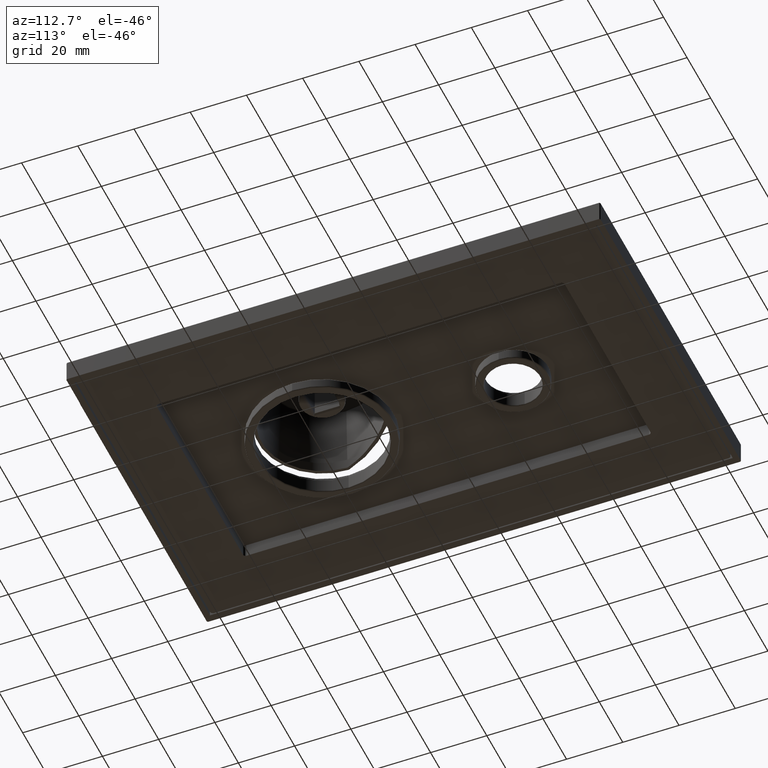
[diagram: clean part render]
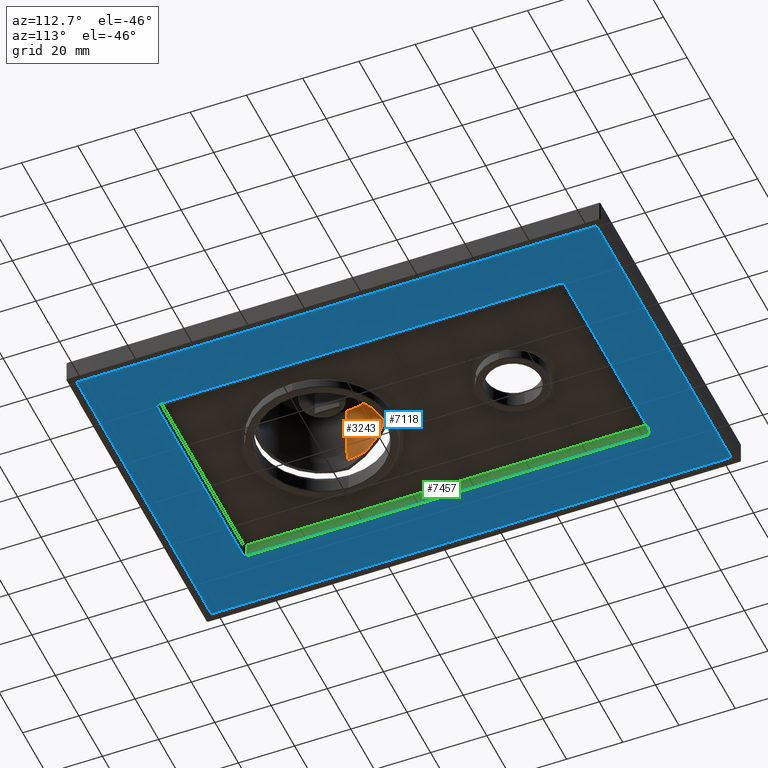
[diagram: same view with three faces highlighted in distinct colors, each labeled with its STEP entity id]
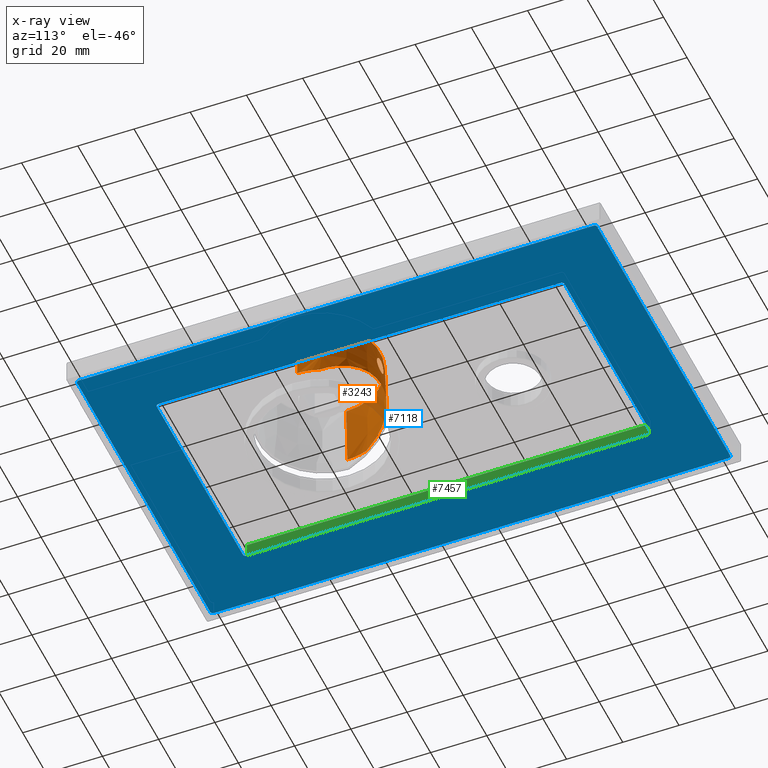
[diagram: x-ray of the same camera — body ghosted, the three highlighted faces saturated]
A machine part, auxiliary view with three faces highlighted in distinct colors.
The next image is the same camera in x-ray (body ghosted, the three faces saturated) — at least one of them is partly hidden behind the body in this view.
Their STEP definitions:

[orange] entity #3243 — the highlighted conical surface has half-angle 2 deg.
#720=CARTESIAN_POINT('',(0.E0,0.E0,3.429015690828E0));
#721=DIRECTION('',(0.E0,0.E0,1.E0));
#722=DIRECTION('',(1.E0,0.E0,0.E0));
#723=AXIS2_PLACEMENT_3D('',#720,#721,#722);
#730=CARTESIAN_POINT('',(0.E0,0.E0,3.429015690828E0));
#731=DIRECTION('',(0.E0,0.E0,1.E0));
#732=DIRECTION('',(-9.388125625496E-1,3.444284721085E-1,0.E0));
#733=AXIS2_PLACEMENT_3D('',#730,#731,#732);
#741=CARTESIAN_POINT('',(0.E0,0.E0,2.551744974835E1));
#742=DIRECTION('',(0.E0,0.E0,-1.E0));
#743=DIRECTION('',(-1.E0,0.E0,0.E0));
#744=AXIS2_PLACEMENT_3D('',#741,#742,#743);
#746=DIRECTION('',(3.489949670250E-2,-1.092299118511E-13,-9.993908270191E-1));
#747=VECTOR('',#746,2.210189793657E1);
#748=CARTESIAN_POINT('',(2.057865488584E1,2.411573752438E-12,2.551744974835E1));
#749=LINE('',#748,#747);
#750=CARTESIAN_POINT('',(-2.004364821043E1,7.353547879517E0,3.429015690828E0));
#751=CARTESIAN_POINT('',(-1.993925420934E1,7.625250289494E0,3.555712605340E0));
#752=CARTESIAN_POINT('',(-1.973046620715E1,8.136075440168E0,3.793914285077E0));
#753=CARTESIAN_POINT('',(-1.931289020276E1,9.059363108245E0,4.224450395382E0));
#754=CARTESIAN_POINT('',(-1.879092019728E1,1.006906660700E1,4.695282869318E0));
#755=CARTESIAN_POINT('',(-1.816455619071E1,1.112253809155E1,5.186524690209E0));
#756=CARTESIAN_POINT('',(-1.753819218413E1,1.205654103118E1,5.622057413698E0));
#757=CARTESIAN_POINT('',(-1.691182817755E1,1.289613158030E1,6.013564916469E0));
#758=CARTESIAN_POINT('',(-1.607667616879E1,1.391181855437E1,6.487187530767E0));
#759=CARTESIAN_POINT('',(-1.503273615783E1,1.501802443531E1,7.003019804546E0));
#760=CARTESIAN_POINT('',(-1.378000814467E1,1.614698559615E1,7.529463039603E0));
#761=CARTESIAN_POINT('',(-1.252728013152E1,1.711482956260E1,7.980776093059E0));
#762=CARTESIAN_POINT('',(-1.127455211837E1,1.794691820496E1,8.368785399253E0));
#763=CARTESIAN_POINT('',(-9.604248100833E0,1.889863657175E1,8.812578962093E0));
#764=CARTESIAN_POINT('',(-7.516368078913E0,1.982588523818E1,9.244962116267E0));
#765=CARTESIAN_POINT('',(-5.010912052609E0,2.058556609231E1,9.599207116302E0));
#766=CARTESIAN_POINT('',(-2.505456026304E0,2.102860070746E1,9.805797550172E0));
#767=CARTESIAN_POINT('',(7.072120666862E-14,2.117430384811E1,9.873740040476E0));
#768=CARTESIAN_POINT('',(2.505456026304E0,2.102860070746E1,9.805797550172E0));
#769=CARTESIAN_POINT('',(5.010912052609E0,2.058556609231E1,9.599207116302E0));
#770=CARTESIAN_POINT('',(7.516368078913E0,1.982588523818E1,9.244962116267E0));
#771=CARTESIAN_POINT('',(9.604248100833E0,1.889863657175E1,8.812578962093E0));
#772=CARTESIAN_POINT('',(1.127455211837E1,1.794691820496E1,8.368785399253E0));
#773=CARTESIAN_POINT('',(1.252728013152E1,1.711482956260E1,7.980776093059E0));
#774=CARTESIAN_POINT('',(1.378000814467E1,1.614698559615E1,7.529463039603E0));
#775=CARTESIAN_POINT('',(1.503273615783E1,1.501802443531E1,7.003019804546E0));
#776=CARTESIAN_POINT('',(1.607667616879E1,1.391181855437E1,6.487187530767E0));
#777=CARTESIAN_POINT('',(1.691182817755E1,1.289613158030E1,6.013564916469E0));
#778=CARTESIAN_POINT('',(1.753819218413E1,1.205654103118E1,5.622057413698E0));
#779=CARTESIAN_POINT('',(1.816455619071E1,1.112253809155E1,5.186524690209E0));
#780=CARTESIAN_POINT('',(1.879092019728E1,1.006906660700E1,4.695282869318E0));
#781=CARTESIAN_POINT('',(1.931289020276E1,9.059363108245E0,4.224450395382E0));
#782=CARTESIAN_POINT('',(1.973046620715E1,8.136075440168E0,3.793914285077E0));
#783=CARTESIAN_POINT('',(1.993925420934E1,7.625250289494E0,3.555712605340E0));
#784=CARTESIAN_POINT('',(2.004364821043E1,7.353547879517E0,3.429015690828E0));
#786=DIRECTION('',(-3.489949670250E-2,1.092611811373E-13,-9.993908270191E-1));
#787=VECTOR('',#786,2.210189793657E1);
#788=CARTESIAN_POINT('',(-2.057865488584E1,-2.413136383316E-12,
2.551744974835E1));
#789=LINE('',#788,#787);
#790=CARTESIAN_POINT('',(-9.999999999996E-1,2.087176502141E1,1.643826230851E1));
#791=CARTESIAN_POINT('',(-9.420694584698E-1,2.087533116332E1,1.641564854063E1));
#792=CARTESIAN_POINT('',(-8.246799383297E-1,2.088191470667E1,1.637435273200E1));
#793=CARTESIAN_POINT('',(-6.446577272368E-1,2.089000023904E1,1.632445465117E1));
#794=CARTESIAN_POINT('',(-4.619731383502E-1,2.089615308861E1,1.628695650156E1));
#795=CARTESIAN_POINT('',(-2.780509975733E-1,2.090028509773E1,1.626199560964E1));
#796=CARTESIAN_POINT('',(-9.273373879364E-2,2.090236837789E1,1.624947675227E1));
#797=CARTESIAN_POINT('',(9.273026985252E-2,2.090236843286E1,1.624947642221E1));
#798=CARTESIAN_POINT('',(2.780587377374E-1,2.090028498674E1,1.626199627585E1));
#799=CARTESIAN_POINT('',(4.619749443987E-1,2.089615298423E1,1.628695714183E1));
#800=CARTESIAN_POINT('',(6.446462804844E-1,2.089000066888E1,1.632445202301E1));
#801=CARTESIAN_POINT('',(8.246723208318E-1,2.088191511731E1,1.637435017102E1));
#802=CARTESIAN_POINT('',(9.420661620583E-1,2.087533136625E1,1.641564725384E1));
#803=CARTESIAN_POINT('',(9.999999999997E-1,2.087176502141E1,1.643826230851E1));
#1488=CARTESIAN_POINT('',(-9.999999999996E-1,2.087176502141E1,
1.643826230851E1));
#1489=CARTESIAN_POINT('',(-1.060453836112E0,2.086804354818E1,1.646186106974E1));
#1490=CARTESIAN_POINT('',(-1.179780475099E0,2.085999747282E1,1.651337531843E1));
#1491=CARTESIAN_POINT('',(-1.353122569632E0,2.084630826663E1,1.660327647862E1));
#1492=CARTESIAN_POINT('',(-1.519899932266E0,2.083121822617E1,1.670540522483E1));
#1493=CARTESIAN_POINT('',(-1.679212762119E0,2.081497212488E1,1.681928060199E1));
#1494=CARTESIAN_POINT('',(-1.830185056741E0,2.079783625533E1,1.694433965857E1));
#1495=CARTESIAN_POINT('',(-1.971977135433E0,2.078009320349E1,1.707993797041E1));
#1496=CARTESIAN_POINT('',(-2.103799412524E0,2.076203555824E1,1.722535479645E1));
#1497=CARTESIAN_POINT('',(-2.224924807521E0,2.074395901389E1,1.737980156033E1));
#1498=CARTESIAN_POINT('',(-2.334697907966E0,2.072615540372E1,1.754243156092E1));
#1499=CARTESIAN_POINT('',(-2.432542426525E0,2.070890575355E1,1.771235238918E1));
#1500=CARTESIAN_POINT('',(-2.517965512092E0,2.069247381930E1,1.788863959585E1));
#1501=CARTESIAN_POINT('',(-2.590558273491E0,2.067710052319E1,1.807034957884E1));
#1502=CARTESIAN_POINT('',(-2.649992849810E0,2.066299955222E1,1.825652927371E1));
#1503=CARTESIAN_POINT('',(-2.696018408477E0,2.065035383219E1,1.844622583596E1));
#1504=CARTESIAN_POINT('',(-2.728455290655E0,2.063931311070E1,1.863849360420E1));
#1505=CARTESIAN_POINT('',(-2.747188264685E0,2.062999262491E1,1.883239568259E1));
#1506=CARTESIAN_POINT('',(-2.752161317586E0,2.062247233349E1,1.902700437900E1));
#1507=CARTESIAN_POINT('',(-2.743372951817E0,2.061679660521E1,1.922140554084E1));
#1508=CARTESIAN_POINT('',(-2.720873677339E0,2.061297484789E1,1.941468508072E1));
#1509=CARTESIAN_POINT('',(-2.684766178849E0,2.061098164359E1,1.960593568543E1));
#1510=CARTESIAN_POINT('',(-2.635203724401E0,2.061075789219E1,1.979425716653E1));
#1511=CARTESIAN_POINT('',(-2.572409078965E0,2.061221166688E1,1.997870626381E1));
#1512=CARTESIAN_POINT('',(-2.496693842083E0,2.061521777620E1,2.015831010495E1));
#1513=CARTESIAN_POINT('',(-2.408420197376E0,2.061962192599E1,2.033217393751E1));
#1514=CARTESIAN_POINT('',(-2.307995913237E0,2.062524566606E1,2.049944867819E1));
#1515=CARTESIAN_POINT('',(-2.195896644704E0,2.063188897912E1,2.065929097505E1));
#1516=CARTESIAN_POINT('',(-2.072660284401E0,2.063933463183E1,2.081088520361E1));
#1517=CARTESIAN_POINT('',(-1.938889767823E0,2.064735262496E1,2.095344520573E1));
#1518=CARTESIAN_POINT('',(-1.795250489542E0,2.065570529676E1,2.108622415131E1));
#1519=CARTESIAN_POINT('',(-1.642467522361E0,2.066415265718E1,2.120852124136E1));
#1520=CARTESIAN_POINT('',(-1.481322183291E0,2.067245791025E1,2.131968955884E1));
#1521=CARTESIAN_POINT('',(-1.312630477522E0,2.068039352166E1,2.141914822674E1));
#1522=CARTESIAN_POINT('',(-1.137340052726E0,2.068774205442E1,2.150633594864E1));
#1523=CARTESIAN_POINT('',(-9.564247610136E-1,2.069430719278E1,
2.158079369177E1));
#1524=CARTESIAN_POINT('',(-7.707948908464E-1,2.069991998517E1,
2.164217787353E1));
#1525=CARTESIAN_POINT('',(-5.813963689904E-1,2.070443742450E1,
2.169020291091E1));
#1526=CARTESIAN_POINT('',(-3.891697348363E-1,2.070774638233E1,
2.172465570737E1));
#1527=CARTESIAN_POINT('',(-1.950588853849E-1,2.070976485661E1,
2.174538635675E1));
#1528=CARTESIAN_POINT('',(-6.130263914522E-6,2.071044324548E1,
2.175230660365E1));
#1529=CARTESIAN_POINT('',(1.950466379801E-1,2.070976494192E1,2.174538722859E1));
#1530=CARTESIAN_POINT('',(3.891576243425E-1,2.070774654947E1,2.172465743224E1));
#1531=CARTESIAN_POINT('',(5.813842825945E-1,2.070443767414E1,2.169020553452E1));
#1532=CARTESIAN_POINT('',(7.707833972549E-1,2.069992029499E1,2.164218120404E1));
#1533=CARTESIAN_POINT('',(9.564125361552E-1,2.069430760237E1,2.158079825074E1));
#1534=CARTESIAN_POINT('',(1.137330481825E0,2.068774243068E1,2.150634031079E1));
#1535=CARTESIAN_POINT('',(1.312617881803E0,2.068039407192E1,2.141915485541E1));
#1536=CARTESIAN_POINT('',(1.481303934354E0,2.067245880774E1,2.131970111488E1));
#1537=CARTESIAN_POINT('',(1.642450832283E0,2.066415355322E1,2.120853370311E1));
#1538=CARTESIAN_POINT('',(1.795234836289E0,2.065570618690E1,2.108623760925E1));
#1539=CARTESIAN_POINT('',(1.938875047100E0,2.064735349728E1,2.095345982060E1));
#1540=CARTESIAN_POINT('',(2.072646713613E0,2.063933545186E1,2.081090073473E1));
#1541=CARTESIAN_POINT('',(2.195884190592E0,2.063188972790E1,2.065930746679E1));
#1542=CARTESIAN_POINT('',(2.307984762897E0,2.062524631329E1,2.049946582028E1));
#1543=CARTESIAN_POINT('',(2.408410097021E0,2.061962246461E1,2.033219224305E1));
#1544=CARTESIAN_POINT('',(2.496685568637E0,2.061521815381E1,2.015832789516E1));
#1545=CARTESIAN_POINT('',(2.572401173941E0,2.061221192690E1,1.997872693733E1));
#1546=CARTESIAN_POINT('',(2.635197832140E0,2.061075794882E1,1.979427702174E1));
#1547=CARTESIAN_POINT('',(2.684762324019E0,2.061098154387E1,1.960595280164E1));
#1548=CARTESIAN_POINT('',(2.720870755912E0,2.061297456312E1,1.941470412689E1));
#1549=CARTESIAN_POINT('',(2.743371477667E0,2.061679615591E1,1.922142387384E1));
#1550=CARTESIAN_POINT('',(2.752161141787E0,2.062247168552E1,1.902702343728E1));
#1551=CARTESIAN_POINT('',(2.747189347481E0,2.062999188170E1,1.883241267949E1));
#1552=CARTESIAN_POINT('',(2.728457417824E0,2.063931226819E1,1.863850952677E1));
#1553=CARTESIAN_POINT('',(2.696021447040E0,2.065035291969E1,1.844624046762E1));
#1554=CARTESIAN_POINT('',(2.649996547273E0,2.066299861717E1,1.825654234909E1));
#1555=CARTESIAN_POINT('',(2.590562559742E0,2.067709956718E1,1.807036146661E1));
#1556=CARTESIAN_POINT('',(2.517970287397E0,2.069247285936E1,1.788865035303E1));
#1557=CARTESIAN_POINT('',(2.432547395193E0,2.070890484180E1,1.771236171611E1));
#1558=CARTESIAN_POINT('',(2.334702990057E0,2.072615454636E1,1.754243966271E1));
#1559=CARTESIAN_POINT('',(2.224929970656E0,2.074395821231E1,1.737980861591E1));
#1560=CARTESIAN_POINT('',(2.103804430889E0,2.076203484306E1,1.722536070341E1));
#1561=CARTESIAN_POINT('',(1.971981737975E0,2.078009260315E1,1.707994266068E1));
#1562=CARTESIAN_POINT('',(1.830189303194E0,2.079783575076E1,1.694434341414E1));
#1563=CARTESIAN_POINT('',(1.679216560216E0,2.081497171904E1,1.681928349184E1));
#1564=CARTESIAN_POINT('',(1.519902804935E0,2.083121795373E1,1.670540709084E1));
#1565=CARTESIAN_POINT('',(1.353124616250E0,2.084630809637E1,1.660327760783E1));
#1566=CARTESIAN_POINT('',(1.179781686666E0,2.085999738802E1,1.651337586359E1));
#1567=CARTESIAN_POINT('',(1.060454265625E0,2.086804352174E1,1.646186123740E1));
#1568=CARTESIAN_POINT('',(9.999999999997E-1,2.087176502141E1,1.643826230851E1));
#1971=CARTESIAN_POINT('',(2.135E1,0.E0,3.429015690828E0));
#1972=CARTESIAN_POINT('',(-2.135E1,0.E0,3.429015690828E0));
#1973=VERTEX_POINT('',#1971);
#1974=VERTEX_POINT('',#1972);
#1983=VERTEX_POINT('',#750);
#1984=VERTEX_POINT('',#784);
#2033=CARTESIAN_POINT('',(-2.057865488584E1,0.E0,2.551744974835E1));
#2034=CARTESIAN_POINT('',(2.057865488584E1,0.E0,2.551744974835E1));
#2035=VERTEX_POINT('',#2033);
#2036=VERTEX_POINT('',#2034);
#2276=VERTEX_POINT('',#790);
#2277=VERTEX_POINT('',#803);
#3221=CARTESIAN_POINT('',(0.E0,0.E0,1.447323271959E1));
#3222=DIRECTION('',(0.E0,0.E0,-1.E0));
#3223=DIRECTION('',(-1.E0,0.E0,0.E0));
#3224=AXIS2_PLACEMENT_3D('',#3221,#3222,#3223);
#3225=CONICAL_SURFACE('',#3224,2.096432744292E1,2.E0);
#3227=ORIENTED_EDGE('',*,*,#3226,.T.);
#3229=ORIENTED_EDGE('',*,*,#3228,.T.);
#3230=ORIENTED_EDGE('',*,*,#3204,.T.);
#3231=ORIENTED_EDGE('',*,*,#3183,.F.);
#3232=ORIENTED_EDGE('',*,*,#3208,.T.);
#3234=ORIENTED_EDGE('',*,*,#3233,.F.);
#3235=EDGE_LOOP('',(#3227,#3229,#3230,#3231,#3232,#3234));
#3236=FACE_OUTER_BOUND('',#3235,.F.);
#3238=ORIENTED_EDGE('',*,*,#3237,.F.);
#3240=ORIENTED_EDGE('',*,*,#3239,.T.);
#3241=EDGE_LOOP('',(#3238,#3240));
#3242=FACE_BOUND('',#3241,.F.);
#3243=ADVANCED_FACE('',(#3236,#3242),#3225,.F.);
#724=CIRCLE('',#723,2.135E1);
#734=CIRCLE('',#733,2.135E1);
#745=CIRCLE('',#744,2.057865488584E1);
#785=B_SPLINE_CURVE_WITH_KNOTS('',3,(#750,#751,#752,#753,#754,#755,#756,#757,
#758,#759,#760,#761,#762,#763,#764,#765,#766,#767,#768,#769,#770,#771,#772,#773,
#774,#775,#776,#777,#778,#779,#780,#781,#782,#783,#784),.UNSPECIFIED.,.F.,.F.,
(4,1,1,1,1,1,1,1,1,1,1,1,1,1,1,1,1,1,1,1,1,1,1,1,1,1,1,1,1,1,1,1,4),(0.E0,
7.8125E-3,1.5625E-2,3.125E-2,4.6875E-2,6.25E-2,7.8125E-2,9.375E-2,1.25E-1,
1.5625E-1,1.875E-1,2.1875E-1,2.5E-1,3.125E-1,3.75E-1,4.375E-1,5.E-1,5.625E-1,
6.25E-1,6.875E-1,7.5E-1,7.8125E-1,8.125E-1,8.4375E-1,8.75E-1,9.0625E-1,
9.21875E-1,9.375E-1,9.53125E-1,9.6875E-1,9.84375E-1,9.921875E-1,1.E0),
.UNSPECIFIED.);
#804=B_SPLINE_CURVE_WITH_KNOTS('',3,(#790,#791,#792,#793,#794,#795,#796,#797,
#798,#799,#800,#801,#802,#803),.UNSPECIFIED.,.F.,.F.,(4,1,1,1,1,1,1,1,1,1,1,4),(
0.E0,9.090909090909E-2,1.818181818182E-1,2.727272727273E-1,3.636363636364E-1,
4.545454545455E-1,5.454545454545E-1,6.363636363636E-1,7.272727272727E-1,
8.181818181818E-1,9.090909090909E-1,1.E0),.UNSPECIFIED.);
#1569=B_SPLINE_CURVE_WITH_KNOTS('',3,(#1488,#1489,#1490,#1491,#1492,#1493,#1494,
#1495,#1496,#1497,#1498,#1499,#1500,#1501,#1502,#1503,#1504,#1505,#1506,#1507,
#1508,#1509,#1510,#1511,#1512,#1513,#1514,#1515,#1516,#1517,#1518,#1519,#1520,
#1521,#1522,#1523,#1524,#1525,#1526,#1527,#1528,#1529,#1530,#1531,#1532,#1533,
#1534,#1535,#1536,#1537,#1538,#1539,#1540,#1541,#1542,#1543,#1544,#1545,#1546,
#1547,#1548,#1549,#1550,#1551,#1552,#1553,#1554,#1555,#1556,#1557,#1558,#1559,
#1560,#1561,#1562,#1563,#1564,#1565,#1566,#1567,#1568),.UNSPECIFIED.,.F.,.F.,(4,
1,1,1,1,1,1,1,1,1,1,1,1,1,1,1,1,1,1,1,1,1,1,1,1,1,1,1,1,1,1,1,1,1,1,1,1,1,1,1,1,
1,1,1,1,1,1,1,1,1,1,1,1,1,1,1,1,1,1,1,1,1,1,1,1,1,1,1,1,1,1,1,1,1,1,1,1,1,4),(
0.E0,1.282051282051E-2,2.564102564103E-2,3.846153846154E-2,5.128205128205E-2,
6.410256410256E-2,7.692307692308E-2,8.974358974359E-2,1.025641025641E-1,
1.153846153846E-1,1.282051282051E-1,1.410256410256E-1,1.538461538462E-1,
1.666666666667E-1,1.794871794872E-1,1.923076923077E-1,2.051282051282E-1,
2.179487179487E-1,2.307692307692E-1,2.435897435897E-1,2.564102564103E-1,
2.692307692308E-1,2.820512820513E-1,2.948717948718E-1,3.076923076923E-1,
3.205128205128E-1,3.333333333333E-1,3.461538461538E-1,3.589743589744E-1,
3.717948717949E-1,3.846153846154E-1,3.974358974359E-1,4.102564102564E-1,
4.230769230769E-1,4.358974358974E-1,4.487179487179E-1,4.615384615385E-1,
4.743589743590E-1,4.871794871795E-1,5.E-1,5.128205128205E-1,5.256410256410E-1,
5.384615384615E-1,5.512820512821E-1,5.641025641026E-1,5.769230769231E-1,
5.897435897436E-1,6.025641025641E-1,6.153846153846E-1,6.282051282051E-1,
6.410256410256E-1,6.538461538462E-1,6.666666666667E-1,6.794871794872E-1,
6.923076923077E-1,7.051282051282E-1,7.179487179487E-1,7.307692307692E-1,
7.435897435897E-1,7.564102564103E-1,7.692307692308E-1,7.820512820513E-1,
7.948717948718E-1,8.076923076923E-1,8.205128205128E-1,8.333333333333E-1,
8.461538461538E-1,8.589743589744E-1,8.717948717949E-1,8.846153846154E-1,
8.974358974359E-1,9.102564102564E-1,9.230769230769E-1,9.358974358974E-1,
9.487179487179E-1,9.615384615385E-1,9.743589743590E-1,9.871794871795E-1,1.E0),
.UNSPECIFIED.);
#3183=EDGE_CURVE('',#1983,#1984,#785,.T.);
#3204=EDGE_CURVE('',#1973,#1984,#724,.T.);
#3208=EDGE_CURVE('',#1983,#1974,#734,.T.);
#3226=EDGE_CURVE('',#2035,#2036,#745,.T.);
#3228=EDGE_CURVE('',#2036,#1973,#749,.T.);
#3233=EDGE_CURVE('',#2035,#1974,#789,.T.);
#3237=EDGE_CURVE('',#2276,#2277,#1569,.T.);
#3239=EDGE_CURVE('',#2276,#2277,#804,.T.);

[blue] entity #7118 — the highlighted planar face has unit normal (0, 0, 1).
#5657=DIRECTION('',(0.E0,1.E0,0.E0));
#5658=VECTOR('',#5657,1.83E2);
#5659=CARTESIAN_POINT('',(5.75E1,-6.25E1,-9.5E0));
#5660=LINE('',#5659,#5658);
#5673=CARTESIAN_POINT('',(5.65E1,1.205E2,-9.5E0));
#5674=DIRECTION('',(0.E0,0.E0,-1.E0));
#5675=DIRECTION('',(0.E0,1.E0,0.E0));
#5676=AXIS2_PLACEMENT_3D('',#5673,#5674,#5675);
#5678=DIRECTION('',(-1.E0,0.E0,0.E0));
#5679=VECTOR('',#5678,1.13E2);
#5680=CARTESIAN_POINT('',(5.65E1,1.215E2,-9.5E0));
#5681=LINE('',#5680,#5679);
#5682=CARTESIAN_POINT('',(-5.65E1,1.205E2,-9.5E0));
#5683=DIRECTION('',(0.E0,0.E0,-1.E0));
#5684=DIRECTION('',(-1.E0,0.E0,0.E0));
#5685=AXIS2_PLACEMENT_3D('',#5682,#5683,#5684);
#5687=CARTESIAN_POINT('',(-5.65E1,-6.25E1,-9.5E0));
#5688=DIRECTION('',(0.E0,0.E0,-1.E0));
#5689=DIRECTION('',(0.E0,-1.E0,0.E0));
#5690=AXIS2_PLACEMENT_3D('',#5687,#5688,#5689);
#5692=DIRECTION('',(1.E0,0.E0,0.E0));
#5693=VECTOR('',#5692,1.13E2);
#5694=CARTESIAN_POINT('',(-5.65E1,-6.35E1,-9.5E0));
#5695=LINE('',#5694,#5693);
#5696=CARTESIAN_POINT('',(5.65E1,-6.25E1,-9.5E0));
#5697=DIRECTION('',(0.E0,0.E0,-1.E0));
#5698=DIRECTION('',(1.E0,0.E0,0.E0));
#5699=AXIS2_PLACEMENT_3D('',#5696,#5697,#5698);
#5701=DIRECTION('',(1.E0,0.E0,0.E0));
#5702=VECTOR('',#5701,7.3E1);
#5703=CARTESIAN_POINT('',(-3.65E1,1.015E2,-9.5E0));
#5704=LINE('',#5703,#5702);
#5705=DIRECTION('',(0.E0,-1.E0,0.E0));
#5706=VECTOR('',#5705,1.43E2);
#5707=CARTESIAN_POINT('',(3.75E1,1.005E2,-9.5E0));
#5708=LINE('',#5707,#5706);
#5709=DIRECTION('',(-1.E0,0.E0,0.E0));
#5710=VECTOR('',#5709,7.3E1);
#5711=CARTESIAN_POINT('',(3.65E1,-4.35E1,-9.5E0));
#5712=LINE('',#5711,#5710);
#5713=DIRECTION('',(0.E0,1.E0,0.E0));
#5714=VECTOR('',#5713,1.43E2);
#5715=CARTESIAN_POINT('',(-3.75E1,-4.25E1,-9.5E0));
#5716=LINE('',#5715,#5714);
#5751=DIRECTION('',(0.E0,1.E0,0.E0));
#5752=VECTOR('',#5751,1.83E2);
#5753=CARTESIAN_POINT('',(-5.75E1,-6.25E1,-9.5E0));
#5754=LINE('',#5753,#5752);
#5873=CARTESIAN_POINT('',(-3.65E1,1.005E2,-9.5E0));
#5874=DIRECTION('',(0.E0,0.E0,1.E0));
#5875=DIRECTION('',(0.E0,1.E0,0.E0));
#5876=AXIS2_PLACEMENT_3D('',#5873,#5874,#5875);
#5886=CARTESIAN_POINT('',(-3.65E1,-4.25E1,-9.5E0));
#5887=DIRECTION('',(0.E0,0.E0,1.E0));
#5888=DIRECTION('',(-1.E0,0.E0,0.E0));
#5889=AXIS2_PLACEMENT_3D('',#5886,#5887,#5888);
#5899=CARTESIAN_POINT('',(3.65E1,-4.25E1,-9.5E0));
#5900=DIRECTION('',(0.E0,0.E0,1.E0));
#5901=DIRECTION('',(0.E0,-1.E0,0.E0));
#5902=AXIS2_PLACEMENT_3D('',#5899,#5900,#5901);
#5912=CARTESIAN_POINT('',(3.65E1,1.005E2,-9.5E0));
#5913=DIRECTION('',(0.E0,0.E0,1.E0));
#5914=DIRECTION('',(1.E0,0.E0,0.E0));
#5915=AXIS2_PLACEMENT_3D('',#5912,#5913,#5914);
#6412=CARTESIAN_POINT('',(-3.65E1,1.015E2,-9.5E0));
#6413=CARTESIAN_POINT('',(3.65E1,1.015E2,-9.5E0));
#6414=VERTEX_POINT('',#6412);
#6415=VERTEX_POINT('',#6413);
#6416=CARTESIAN_POINT('',(3.75E1,1.005E2,-9.5E0));
#6417=CARTESIAN_POINT('',(3.75E1,-4.25E1,-9.5E0));
#6418=VERTEX_POINT('',#6416);
#6419=VERTEX_POINT('',#6417);
#6420=CARTESIAN_POINT('',(3.65E1,-4.35E1,-9.5E0));
#6421=CARTESIAN_POINT('',(-3.65E1,-4.35E1,-9.5E0));
#6422=VERTEX_POINT('',#6420);
#6423=VERTEX_POINT('',#6421);
#6424=CARTESIAN_POINT('',(-3.75E1,-4.25E1,-9.5E0));
#6425=CARTESIAN_POINT('',(-3.75E1,1.005E2,-9.5E0));
#6426=VERTEX_POINT('',#6424);
#6427=VERTEX_POINT('',#6425);
#6428=CARTESIAN_POINT('',(-5.65E1,-6.35E1,-9.5E0));
#6429=CARTESIAN_POINT('',(5.65E1,-6.35E1,-9.5E0));
#6430=VERTEX_POINT('',#6428);
#6431=VERTEX_POINT('',#6429);
#6432=CARTESIAN_POINT('',(5.65E1,1.215E2,-9.5E0));
#6433=CARTESIAN_POINT('',(-5.65E1,1.215E2,-9.5E0));
#6434=VERTEX_POINT('',#6432);
#6435=VERTEX_POINT('',#6433);
#6468=CARTESIAN_POINT('',(5.75E1,-6.25E1,-9.5E0));
#6469=CARTESIAN_POINT('',(5.75E1,1.205E2,-9.5E0));
#6470=VERTEX_POINT('',#6468);
#6471=VERTEX_POINT('',#6469);
#6472=CARTESIAN_POINT('',(-5.75E1,-6.25E1,-9.5E0));
#6473=CARTESIAN_POINT('',(-5.75E1,1.205E2,-9.5E0));
#6474=VERTEX_POINT('',#6472);
#6475=VERTEX_POINT('',#6473);
#7078=CARTESIAN_POINT('',(0.E0,2.9E1,-9.5E0));
#7079=DIRECTION('',(0.E0,0.E0,1.E0));
#7080=DIRECTION('',(1.E0,0.E0,0.E0));
#7081=AXIS2_PLACEMENT_3D('',#7078,#7079,#7080);
#7082=PLANE('',#7081);
#7084=ORIENTED_EDGE('',*,*,#7083,.F.);
#7086=ORIENTED_EDGE('',*,*,#7085,.T.);
#7088=ORIENTED_EDGE('',*,*,#7087,.F.);
#7090=ORIENTED_EDGE('',*,*,#7089,.F.);
#7092=ORIENTED_EDGE('',*,*,#7091,.F.);
#7094=ORIENTED_EDGE('',*,*,#7093,.T.);
#7096=ORIENTED_EDGE('',*,*,#7095,.F.);
#7097=ORIENTED_EDGE('',*,*,#7053,.T.);
#7098=EDGE_LOOP('',(#7084,#7086,#7088,#7090,#7092,#7094,#7096,#7097));
#7099=FACE_OUTER_BOUND('',#7098,.F.);
#7101=ORIENTED_EDGE('',*,*,#7100,.T.);
#7103=ORIENTED_EDGE('',*,*,#7102,.F.);
#7105=ORIENTED_EDGE('',*,*,#7104,.T.);
#7107=ORIENTED_EDGE('',*,*,#7106,.F.);
#7109=ORIENTED_EDGE('',*,*,#7108,.T.);
#7111=ORIENTED_EDGE('',*,*,#7110,.F.);
#7113=ORIENTED_EDGE('',*,*,#7112,.T.);
#7115=ORIENTED_EDGE('',*,*,#7114,.F.);
#7116=EDGE_LOOP('',(#7101,#7103,#7105,#7107,#7109,#7111,#7113,#7115));
#7117=FACE_BOUND('',#7116,.F.);
#7118=ADVANCED_FACE('',(#7099,#7117),#7082,.F.);
#5677=CIRCLE('',#5676,1.E0);
#5686=CIRCLE('',#5685,1.E0);
#5691=CIRCLE('',#5690,1.E0);
#5700=CIRCLE('',#5699,1.E0);
#5877=CIRCLE('',#5876,1.E0);
#5890=CIRCLE('',#5889,1.E0);
#5903=CIRCLE('',#5902,1.E0);
#5916=CIRCLE('',#5915,1.E0);
#7053=EDGE_CURVE('',#6470,#6471,#5660,.T.);
#7083=EDGE_CURVE('',#6434,#6471,#5677,.T.);
#7085=EDGE_CURVE('',#6434,#6435,#5681,.T.);
#7087=EDGE_CURVE('',#6475,#6435,#5686,.T.);
#7089=EDGE_CURVE('',#6474,#6475,#5754,.T.);
#7091=EDGE_CURVE('',#6430,#6474,#5691,.T.);
#7093=EDGE_CURVE('',#6430,#6431,#5695,.T.);
#7095=EDGE_CURVE('',#6470,#6431,#5700,.T.);
#7100=EDGE_CURVE('',#6414,#6415,#5704,.T.);
#7102=EDGE_CURVE('',#6418,#6415,#5916,.T.);
#7104=EDGE_CURVE('',#6418,#6419,#5708,.T.);
#7106=EDGE_CURVE('',#6422,#6419,#5903,.T.);
#7108=EDGE_CURVE('',#6422,#6423,#5712,.T.);
#7110=EDGE_CURVE('',#6426,#6423,#5890,.T.);
#7112=EDGE_CURVE('',#6426,#6427,#5716,.T.);
#7114=EDGE_CURVE('',#6414,#6427,#5877,.T.);

[green] entity #7457 — the highlighted planar face has unit normal (1, 0, 0).
#5713=DIRECTION('',(0.E0,1.E0,0.E0));
#5714=VECTOR('',#5713,1.43E2);
#5715=CARTESIAN_POINT('',(-3.75E1,-4.25E1,-9.5E0));
#5716=LINE('',#5715,#5714);
#5826=DIRECTION('',(0.E0,1.E0,0.E0));
#5827=VECTOR('',#5826,1.43E2);
#5828=CARTESIAN_POINT('',(-3.75E1,-4.25E1,-4.5E0));
#5829=LINE('',#5828,#5827);
#5878=DIRECTION('',(0.E0,0.E0,1.E0));
#5879=VECTOR('',#5878,5.E0);
#5880=CARTESIAN_POINT('',(-3.75E1,1.005E2,-9.5E0));
#5881=LINE('',#5880,#5879);
#5882=DIRECTION('',(0.E0,0.E0,1.E0));
#5883=VECTOR('',#5882,5.E0);
#5884=CARTESIAN_POINT('',(-3.75E1,-4.25E1,-9.5E0));
#5885=LINE('',#5884,#5883);
#6424=CARTESIAN_POINT('',(-3.75E1,-4.25E1,-9.5E0));
#6425=CARTESIAN_POINT('',(-3.75E1,1.005E2,-9.5E0));
#6426=VERTEX_POINT('',#6424);
#6427=VERTEX_POINT('',#6425);
#6456=CARTESIAN_POINT('',(-3.75E1,-4.25E1,-4.5E0));
#6457=CARTESIAN_POINT('',(-3.75E1,1.005E2,-4.5E0));
#6458=VERTEX_POINT('',#6456);
#6459=VERTEX_POINT('',#6457);
#7445=CARTESIAN_POINT('',(-3.75E1,-4.35E1,-9.5E0));
#7446=DIRECTION('',(1.E0,0.E0,0.E0));
#7447=DIRECTION('',(0.E0,1.E0,0.E0));
#7448=AXIS2_PLACEMENT_3D('',#7445,#7446,#7447);
#7449=PLANE('',#7448);
#7450=ORIENTED_EDGE('',*,*,#7391,.T.);
#7451=ORIENTED_EDGE('',*,*,#7433,.F.);
#7452=ORIENTED_EDGE('',*,*,#7112,.F.);
#7454=ORIENTED_EDGE('',*,*,#7453,.T.);
#7455=EDGE_LOOP('',(#7450,#7451,#7452,#7454));
#7456=FACE_OUTER_BOUND('',#7455,.F.);
#7457=ADVANCED_FACE('',(#7456),#7449,.T.);
#7112=EDGE_CURVE('',#6426,#6427,#5716,.T.);
#7391=EDGE_CURVE('',#6458,#6459,#5829,.T.);
#7433=EDGE_CURVE('',#6427,#6459,#5881,.T.);
#7453=EDGE_CURVE('',#6426,#6458,#5885,.T.);